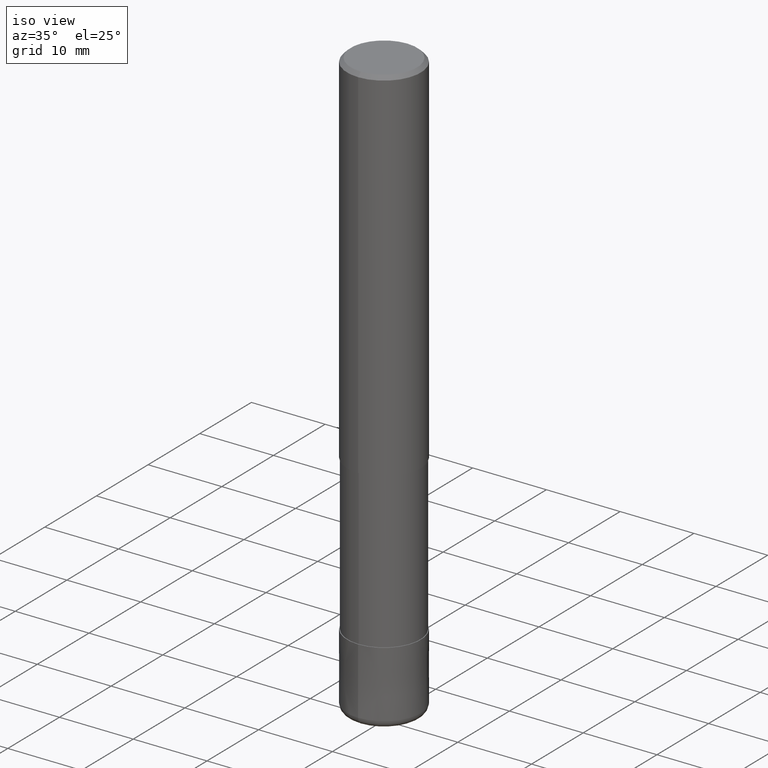
[diagram: clean part render]
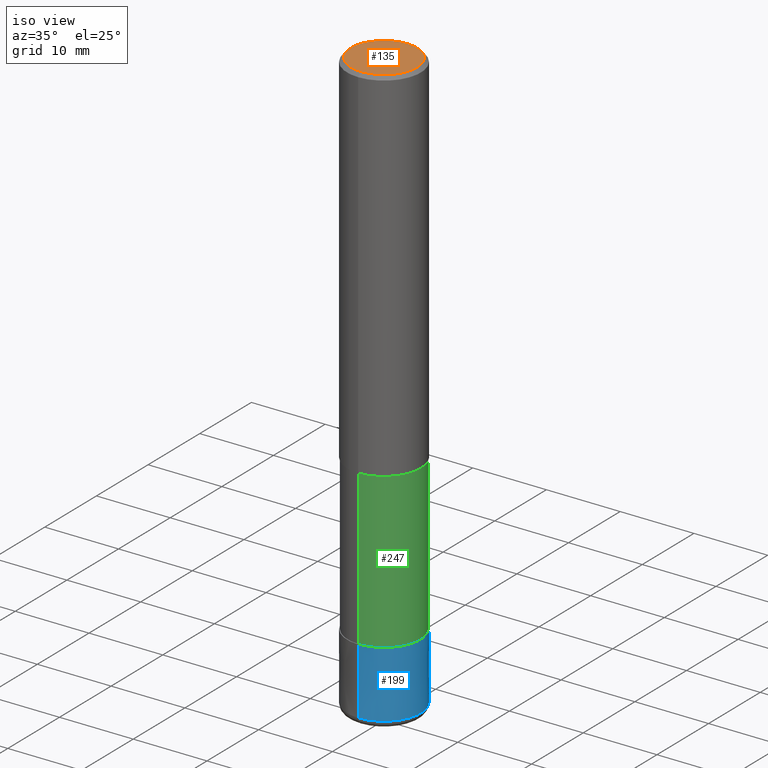
[diagram: same view with three faces highlighted in distinct colors, each labeled with its STEP entity id]
A machine part, iso view with three faces highlighted in distinct colors.
Their STEP definitions:

[orange] entity #135 — the highlighted planar face has unit normal (-0, 0, 1).
#131=EDGE_CURVE('',#231,#167,#320,.T.);
#135=ADVANCED_FACE('',(#324),#325,.T.);
#167=VERTEX_POINT('',#364);
#171=EDGE_CURVE('',#167,#231,#369,.T.);
#231=VERTEX_POINT('',#438);
#320=CIRCLE('',#527,4.5);
#324=FACE_OUTER_BOUND('',#531,.T.);
#325=PLANE('',#532);
#364=CARTESIAN_POINT('',(5.5107285922007E-016,-4.5,0.0));
#369=CIRCLE('',#586,4.5);
#438=CARTESIAN_POINT('',(0.0,4.5,0.0));
#527=AXIS2_PLACEMENT_3D('',#772,#773,#774);
#531=EDGE_LOOP('',(#776,#777));
#532=AXIS2_PLACEMENT_3D('',#778,#779,#780);
#586=AXIS2_PLACEMENT_3D('',#852,#853,#854);
#772=CARTESIAN_POINT('',(0.0,0.0,0.0));
#773=DIRECTION('',(0.0,0.0,-1.0));
#774=DIRECTION('',(0.0,1.0,0.0));
#776=ORIENTED_EDGE('',*,*,#131,.F.);
#777=ORIENTED_EDGE('',*,*,#171,.F.);
#778=CARTESIAN_POINT('',(0.0,2.25,0.0));
#779=DIRECTION('',(-0.0,0.0,1.0));
#780=DIRECTION('',(0.0,-1.0,0.0));
#852=CARTESIAN_POINT('',(0.0,0.0,0.0));
#853=DIRECTION('',(0.0,0.0,-1.0));
#854=DIRECTION('',(0.0,1.0,0.0));

[blue] entity #199 — the highlighted conical surface has half-angle 0.001 deg.
#127=VERTEX_POINT('',#316);
#143=EDGE_CURVE('',#241,#271,#334,.T.);
#161=VERTEX_POINT('',#357);
#199=ADVANCED_FACE('',(#402),#403,.T.);
#235=EDGE_CURVE('',#127,#161,#442,.T.);
#241=VERTEX_POINT('',#449);
#245=EDGE_CURVE('',#127,#241,#454,.T.);
#271=VERTEX_POINT('',#481);
#279=EDGE_CURVE('',#271,#161,#489,.T.);
#316=CARTESIAN_POINT('',(0.0,4.9999,-70.0));
#334=CIRCLE('',#545,5.0);
#357=CARTESIAN_POINT('',(6.1229093084765E-016,-4.9999,-70.0));
#402=FACE_OUTER_BOUND('',#628,.T.);
#403=CONICAL_SURFACE('',#629,4.99995,1.1111111110628E-005);
#442=CIRCLE('',#677,4.9999);
#449=CARTESIAN_POINT('',(0.0,5.0,-79.0));
#454=LINE('',#692,#693);
#481=CARTESIAN_POINT('',(6.12303176911189E-016,-5.0,-79.0));
#489=LINE('',#739,#740);
#545=AXIS2_PLACEMENT_3D('',#793,#794,#795);
#628=EDGE_LOOP('',(#897,#898,#899,#900));
#629=AXIS2_PLACEMENT_3D('',#901,#902,#903);
#677=AXIS2_PLACEMENT_3D('',#943,#944,#945);
#692=CARTESIAN_POINT('',(-6.12297053879419E-016,4.99995,-74.5));
#693=VECTOR('',#963,1.0);
#739=CARTESIAN_POINT('',(6.12297053879419E-016,-4.99995,-74.5));
#740=VECTOR('',#986,1.0);
#793=CARTESIAN_POINT('',(0.0,0.0,-79.0));
#794=DIRECTION('',(0.0,0.0,-1.0));
#795=DIRECTION('',(0.0,1.0,0.0));
#897=ORIENTED_EDGE('',*,*,#245,.F.);
#898=ORIENTED_EDGE('',*,*,#235,.T.);
#899=ORIENTED_EDGE('',*,*,#279,.F.);
#900=ORIENTED_EDGE('',*,*,#143,.F.);
#901=CARTESIAN_POINT('',(0.0,0.0,-74.5));
#902=DIRECTION('',(0.0,-0.0,-1.0));
#903=DIRECTION('',(0.0,1.0,0.0));
#943=CARTESIAN_POINT('',(0.0,0.0,-70.0));
#944=DIRECTION('',(0.0,0.0,-1.0));
#945=DIRECTION('',(0.0,1.0,0.0));
#963=DIRECTION('',(-1.36067372638214E-021,1.11111111103993E-005,-0.999999999938272));
#986=DIRECTION('',(-1.36067372638214E-021,1.11111111103993E-005,0.999999999938272));

[green] entity #247 — the highlighted cylindrical surface (partial cylindrical patch) has radius 4.905 mm, axis along (-0, -0, 1).
#133=VERTEX_POINT('',#322);
#139=EDGE_CURVE('',#193,#225,#330,.T.);
#153=EDGE_CURVE('',#225,#205,#347,.T.);
#193=VERTEX_POINT('',#395);
#205=VERTEX_POINT('',#409);
#225=VERTEX_POINT('',#432);
#247=ADVANCED_FACE('',(#456),#457,.T.);
#249=EDGE_CURVE('',#133,#205,#459,.T.);
#251=EDGE_CURVE('',#133,#193,#461,.T.);
#322=CARTESIAN_POINT('',(0.0,4.90495,-49.0));
#330=CIRCLE('',#538,4.90495);
#347=LINE('',#561,#562);
#395=CARTESIAN_POINT('',(0.0,4.90495,-70.0));
#409=CARTESIAN_POINT('',(6.00663293518107E-016,-4.90495,-49.0));
#432=CARTESIAN_POINT('',(6.00663293518107E-016,-4.90495,-70.0));
#456=FACE_OUTER_BOUND('',#695,.T.);
#457=CYLINDRICAL_SURFACE('',#696,4.90495);
#459=CIRCLE('',#699,4.90495);
#461=LINE('',#702,#703);
#538=AXIS2_PLACEMENT_3D('',#789,#790,#791);
#561=CARTESIAN_POINT('',(6.00663293518107E-016,-4.90495,-59.5));
#562=VECTOR('',#816,1.0);
#695=EDGE_LOOP('',(#965,#966,#967,#968));
#696=AXIS2_PLACEMENT_3D('',#969,#970,#971);
#699=AXIS2_PLACEMENT_3D('',#972,#973,#974);
#702=CARTESIAN_POINT('',(-6.00663293518107E-016,4.90495,-59.5));
#703=VECTOR('',#975,1.0);
#789=CARTESIAN_POINT('',(0.0,0.0,-70.0));
#790=DIRECTION('',(0.0,0.0,-1.0));
#791=DIRECTION('',(0.0,1.0,0.0));
#816=DIRECTION('',(-0.0,-0.0,1.0));
#965=ORIENTED_EDGE('',*,*,#251,.F.);
#966=ORIENTED_EDGE('',*,*,#249,.T.);
#967=ORIENTED_EDGE('',*,*,#153,.F.);
#968=ORIENTED_EDGE('',*,*,#139,.F.);
#969=CARTESIAN_POINT('',(0.0,0.0,-59.5));
#970=DIRECTION('',(-0.0,-0.0,1.0));
#971=DIRECTION('',(0.0,1.0,0.0));
#972=CARTESIAN_POINT('',(0.0,0.0,-49.0));
#973=DIRECTION('',(0.0,0.0,-1.0));
#974=DIRECTION('',(0.0,1.0,0.0));
#975=DIRECTION('',(0.0,0.0,-1.0));